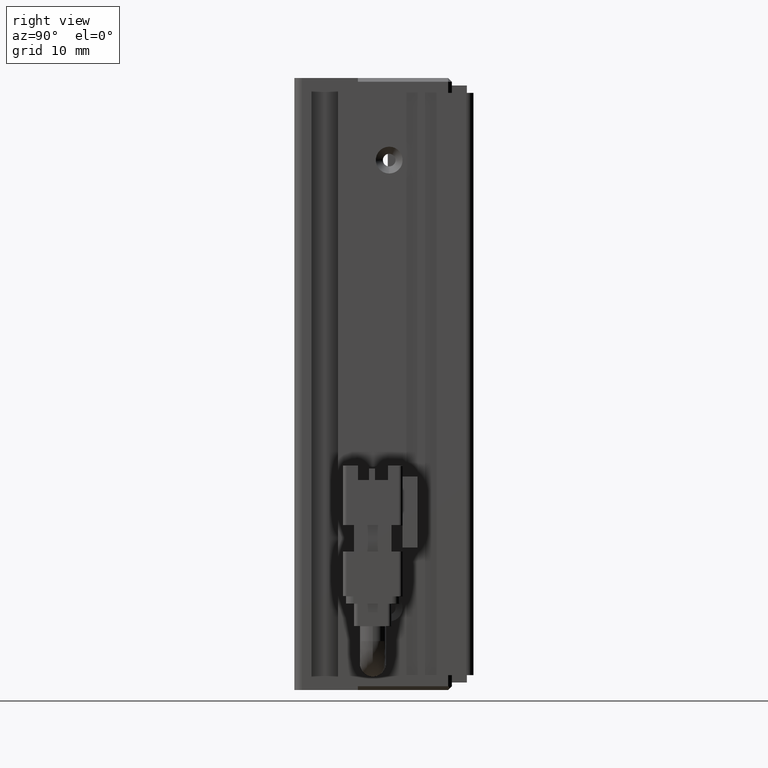
[diagram: clean part render]
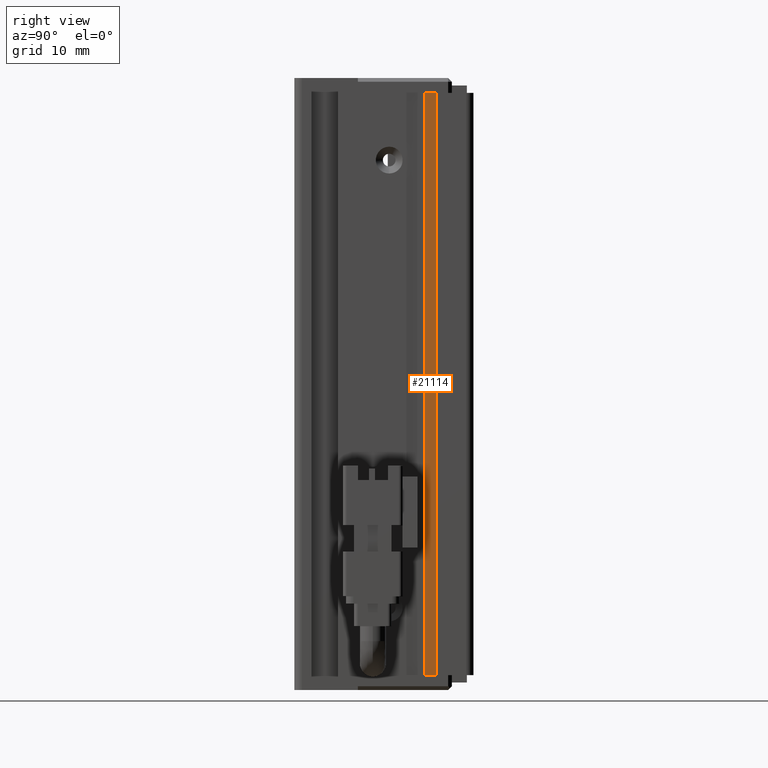
[diagram: same view with one face highlighted and labeled with its STEP entity id]
A machine part, right view. The second image highlights one B-rep face of the part: STEP entity #21114.
In plain terms, the highlighted planar face has unit normal (1, 0, 0).
Its self-contained STEP definition (entity closure, byte-faithful):
#264 = VERTEX_POINT ( 'NONE', #25677 ) ;
#367 = VERTEX_POINT ( 'NONE', #23672 ) ;
#489 = PLANE ( 'NONE',  #17308 ) ;
#1865 = VECTOR ( 'NONE', #8396, 1000.000000000000000 ) ;
#2243 = EDGE_CURVE ( 'NONE', #264, #20394, #27770, .T. ) ;
#3234 = VERTEX_POINT ( 'NONE', #11391 ) ;
#5279 = DIRECTION ( 'NONE',  ( -7.380418287155808400E-032, 1.000000000000000000, 0.0000000000000000000 ) ) ;
#6432 = CARTESIAN_POINT ( 'NONE',  ( 50.92537974683541800, 29.99073232304837000, -74.00000000000001400 ) ) ;
#6546 = CARTESIAN_POINT ( 'NONE',  ( 50.92537974683541800, 7.083797468354437600, -76.00000000000002800 ) ) ;
#6782 = EDGE_CURVE ( 'NONE', #3234, #367, #28032, .T. ) ;
#8396 = DIRECTION ( 'NONE',  ( -7.380418287155808400E-032, 1.000000000000000000, 0.0000000000000000000 ) ) ;
#10504 = VECTOR ( 'NONE', #15788, 1000.000000000000000 ) ;
#10559 = EDGE_CURVE ( 'NONE', #3234, #264, #16975, .T. ) ;
#11391 = CARTESIAN_POINT ( 'NONE',  ( 50.92537974683541800, 29.99073232304837000, -76.00000000000001400 ) ) ;
#12065 = FACE_OUTER_BOUND ( 'NONE', #18881, .T. ) ;
#13962 = ORIENTED_EDGE ( 'NONE', *, *, #6782, .F. ) ;
#15083 = ORIENTED_EDGE ( 'NONE', *, *, #10559, .T. ) ;
#15321 = ORIENTED_EDGE ( 'NONE', *, *, #2243, .T. ) ;
#15788 = DIRECTION ( 'NONE',  ( 7.380418287155808400E-032, -1.000000000000000000, -0.0000000000000000000 ) ) ;
#16975 = LINE ( 'NONE', #6546, #10504 ) ;
#16980 = LINE ( 'NONE', #20101, #1865 ) ;
#17308 = AXIS2_PLACEMENT_3D ( 'NONE', #23634, #25935, #5279 ) ;
#17761 = ORIENTED_EDGE ( 'NONE', *, *, #24642, .T. ) ;
#18605 = CARTESIAN_POINT ( 'NONE',  ( 50.92537974683541800, 28.49073232304836600, -74.00000000000001400 ) ) ;
#18813 = DIRECTION ( 'NONE',  ( -0.0000000000000000000, 0.0000000000000000000, -1.000000000000000000 ) ) ;
#18881 = EDGE_LOOP ( 'NONE', ( #17761, #13962, #15083, #15321 ) ) ;
#20101 = CARTESIAN_POINT ( 'NONE',  ( 50.92537974683541800, 7.083797468354437600, -154.0000000000000000 ) ) ;
#20394 = VERTEX_POINT ( 'NONE', #27398 ) ;
#21114 = ADVANCED_FACE ( 'NONE', ( #12065 ), #489, .T. ) ;
#21651 = VECTOR ( 'NONE', #18813, 1000.000000000000000 ) ;
#23634 = CARTESIAN_POINT ( 'NONE',  ( 50.92537974683541800, 7.083797468354437600, -74.00000000000001400 ) ) ;
#23672 = CARTESIAN_POINT ( 'NONE',  ( 50.92537974683541800, 29.99073232304837000, -154.0000000000000000 ) ) ;
#24095 = VECTOR ( 'NONE', #24876, 1000.000000000000000 ) ;
#24642 = EDGE_CURVE ( 'NONE', #20394, #367, #16980, .T. ) ;
#24876 = DIRECTION ( 'NONE',  ( 0.0000000000000000000, -0.0000000000000000000, -1.000000000000000000 ) ) ;
#25677 = CARTESIAN_POINT ( 'NONE',  ( 50.92537974683541800, 28.49073232304836600, -76.00000000000001400 ) ) ;
#25935 = DIRECTION ( 'NONE',  ( 1.000000000000000000, 7.380418287155808400E-032, 0.0000000000000000000 ) ) ;
#27398 = CARTESIAN_POINT ( 'NONE',  ( 50.92537974683541800, 28.49073232304836600, -154.0000000000000000 ) ) ;
#27770 = LINE ( 'NONE', #18605, #21651 ) ;
#28032 = LINE ( 'NONE', #6432, #24095 ) ;